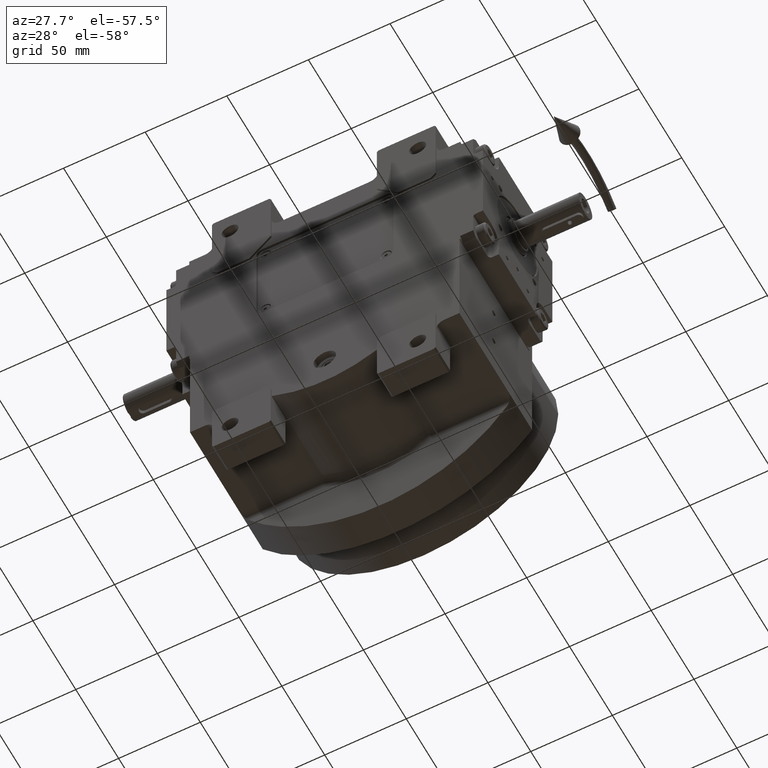
[diagram: clean part render]
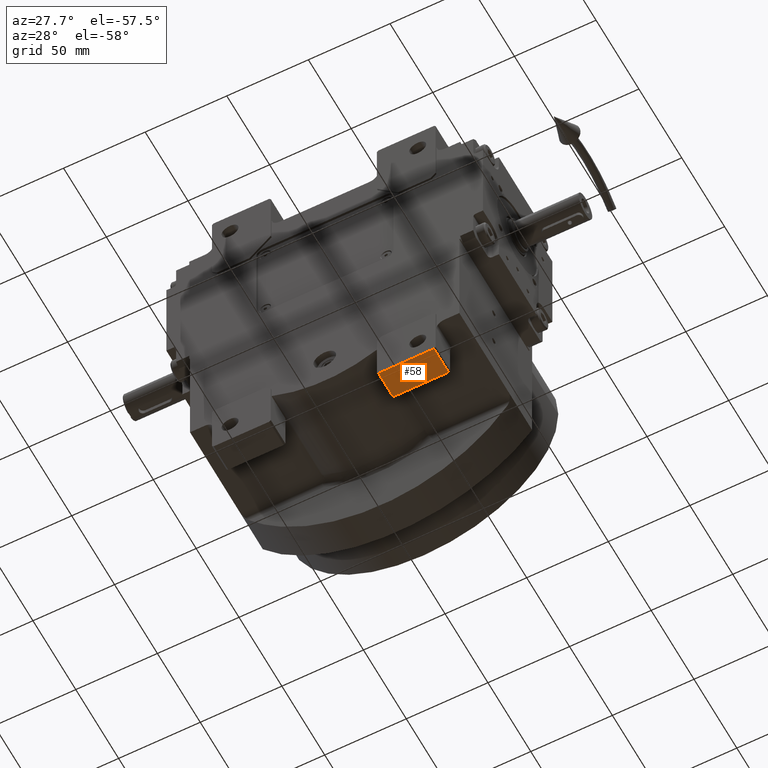
[diagram: same view with one face highlighted and labeled with its STEP entity id]
A machine part, auxiliary view. The second image highlights one B-rep face of the part: STEP entity #58.
In plain terms, the highlighted planar face has unit normal (0, 0, -1).
Its self-contained STEP definition (entity closure, byte-faithful):
#58 = ADVANCED_FACE ( 'NONE', ( #63928 ), #34492, .T. ) ;
#2403 = LINE ( 'NONE', #26657, #58447 ) ;
#5376 = LINE ( 'NONE', #6338, #39409 ) ;
#6338 = CARTESIAN_POINT ( 'NONE',  ( 33.50000000000000000, -41.50000000000000000, -85.00000000000000000 ) ) ;
#7207 = ORIENTED_EDGE ( 'NONE', *, *, #59955, .T. ) ;
#9704 = LINE ( 'NONE', #14235, #29724 ) ;
#14235 = CARTESIAN_POINT ( 'NONE',  ( 33.50000000000000000, -41.50000000000000000, -85.00000000000000000 ) ) ;
#15119 = CARTESIAN_POINT ( 'NONE',  ( 67.50000000000000000, -41.50000000000000000, -85.00000000000000000 ) ) ;
#15315 = CARTESIAN_POINT ( 'NONE',  ( 67.50000000000000000, -41.50000000000000000, -85.00000000000000000 ) ) ;
#15384 = DIRECTION ( 'NONE',  ( 1.000000000000000000, 0.000000000000000000, 0.000000000000000000 ) ) ;
#15617 = DIRECTION ( 'NONE',  ( 0.000000000000000000, 1.000000000000000000, 0.000000000000000000 ) ) ;
#18400 = VECTOR ( 'NONE', #15617, 1000.000000000000000 ) ;
#19449 = ORIENTED_EDGE ( 'NONE', *, *, #46834, .F. ) ;
#20237 = DIRECTION ( 'NONE',  ( 0.000000000000000000, 0.000000000000000000, -1.000000000000000000 ) ) ;
#24955 = VERTEX_POINT ( 'NONE', #15119 ) ;
#26657 = CARTESIAN_POINT ( 'NONE',  ( 33.50000000000000000, -24.50000000000000000, -85.00000000000000000 ) ) ;
#28178 = EDGE_CURVE ( 'NONE', #62984, #24955, #5376, .T. ) ;
#29457 = DIRECTION ( 'NONE',  ( 0.000000000000000000, 1.000000000000000000, 0.000000000000000000 ) ) ;
#29636 = CARTESIAN_POINT ( 'NONE',  ( 32.50000000000000000, -24.50000000000000000, -85.00000000000000000 ) ) ;
#29724 = VECTOR ( 'NONE', #29457, 1000.000000000000000 ) ;
#31508 = DIRECTION ( 'NONE',  ( 1.000000000000000000, 0.000000000000000000, 0.000000000000000000 ) ) ;
#32621 = ORIENTED_EDGE ( 'NONE', *, *, #58167, .T. ) ;
#33504 = CARTESIAN_POINT ( 'NONE',  ( 67.50000000000000000, -24.50000000000000000, -85.00000000000000000 ) ) ;
#34492 = PLANE ( 'NONE',  #47705 ) ;
#35780 = EDGE_LOOP ( 'NONE', ( #32621, #19449, #59249, #7207 ) ) ;
#39019 = DIRECTION ( 'NONE',  ( 1.000000000000000000, 0.000000000000000000, 0.000000000000000000 ) ) ;
#39409 = VECTOR ( 'NONE', #15384, 1000.000000000000000 ) ;
#41926 = CARTESIAN_POINT ( 'NONE',  ( 33.50000000000000000, -41.50000000000000000, -85.00000000000000000 ) ) ;
#42140 = VERTEX_POINT ( 'NONE', #33504 ) ;
#46834 = EDGE_CURVE ( 'NONE', #24955, #42140, #59617, .T. ) ;
#47705 = AXIS2_PLACEMENT_3D ( 'NONE', #29636, #20237, #39019 ) ;
#55917 = CARTESIAN_POINT ( 'NONE',  ( 33.50000000000000000, -24.50000000000000000, -85.00000000000000000 ) ) ;
#58167 = EDGE_CURVE ( 'NONE', #60029, #42140, #2403, .T. ) ;
#58447 = VECTOR ( 'NONE', #31508, 1000.000000000000000 ) ;
#59249 = ORIENTED_EDGE ( 'NONE', *, *, #28178, .F. ) ;
#59617 = LINE ( 'NONE', #15315, #18400 ) ;
#59955 = EDGE_CURVE ( 'NONE', #62984, #60029, #9704, .T. ) ;
#60029 = VERTEX_POINT ( 'NONE', #55917 ) ;
#62984 = VERTEX_POINT ( 'NONE', #41926 ) ;
#63928 = FACE_OUTER_BOUND ( 'NONE', #35780, .T. ) ;